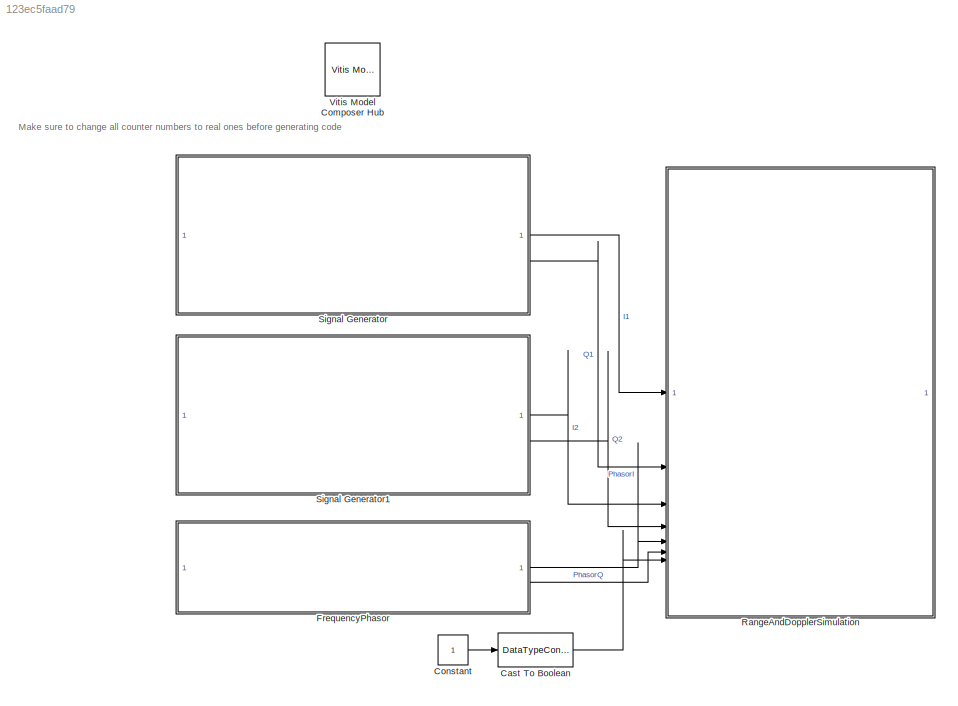
MODEL slx_123ec5faad79
KIND model
CONFIG AbsTol = auto
CONFIG EnableMultiTasking = off
CONFIG FixedStep = auto
CONFIG MaxStep = auto
CONFIG MinStep = auto
CONFIG RelTol = 1e-3
CONFIG SampleTimeConstraint = Unconstrained
CONFIG SolverName = VariableStepAuto
CONFIG StartTime = 0.0
CONFIG StopTime = 0.001
BLOCK [DataTypeConversion] Cast To Boolean
  OutDataTypeStr = boolean
  RndMeth = Floor
  SaturateOnIntegerOverflow = off
BLOCK [Constant] Constant
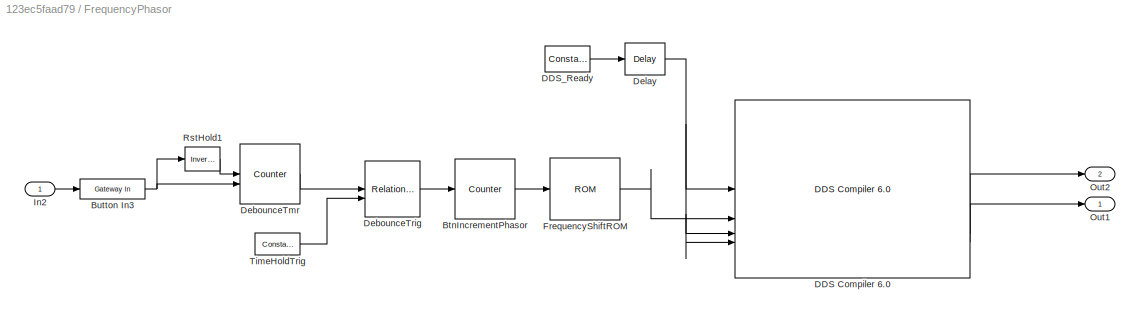
BLOCK [SubSystem] FrequencyPhasor
  SystemSampleTime = 1/200e6
  TreatAsAtomicUnit = on
BLOCK [Reference] FrequencyPhasor/BtnIncrementPhasor  REF=hdlBasic/Counter
  SourceBlock = hdlBasic/Counter
  SourceType = Counter Block
BLOCK [Reference] FrequencyPhasor/Button In3  REF=hdlBasic/Gateway In
  SourceBlock = hdlBasic/Gateway In
  SourceType = Gateway In Block
BLOCK [Reference] FrequencyPhasor/DDS Compiler 6.0  REF=hdlDSPIP/DDS Compiler 6.0 
  SourceBlock = hdlDSPIP/DDS Compiler 6.0
  SourceType = DDS Compiler 6.0 Block
BLOCK [Reference] FrequencyPhasor/DDS_Ready  REF=hdlBasic/Constant
  SourceBlock = hdlBasic/Constant
  SourceType = Constant Block Block
BLOCK [Reference] FrequencyPhasor/DebounceTmr  REF=hdlBasic/Counter
  SourceBlock = hdlBasic/Counter
  SourceType = Counter Block
BLOCK [Reference] FrequencyPhasor/DebounceTrig  REF=hdlBasic/Relational
  SourceBlock = hdlBasic/Relational
  SourceType = Arithmetic Relational Operator Block
BLOCK [Reference] FrequencyPhasor/Delay  REF=hdlBasic/Delay
  SourceBlock = hdlBasic/Delay
  SourceType = Delay Block
BLOCK [Reference] FrequencyPhasor/FrequencyShiftROM  REF=hdlBasic/ROM
  SourceBlock = hdlBasic/ROM
  SourceType = Single Port Read-Only Memory Block
BLOCK [Inport] FrequencyPhasor/In2
BLOCK [Outport] FrequencyPhasor/Out1
BLOCK [Outport] FrequencyPhasor/Out2
  Port = 2
BLOCK [Reference] FrequencyPhasor/RstHold1  REF=hdlBasic/Inverter
  SourceBlock = hdlBasic/Inverter
  SourceType = Inverter Block
BLOCK [Reference] FrequencyPhasor/TimeHoldTrig  REF=hdlBasic/Constant
  SourceBlock = hdlBasic/Constant
  SourceType = Constant Block Block
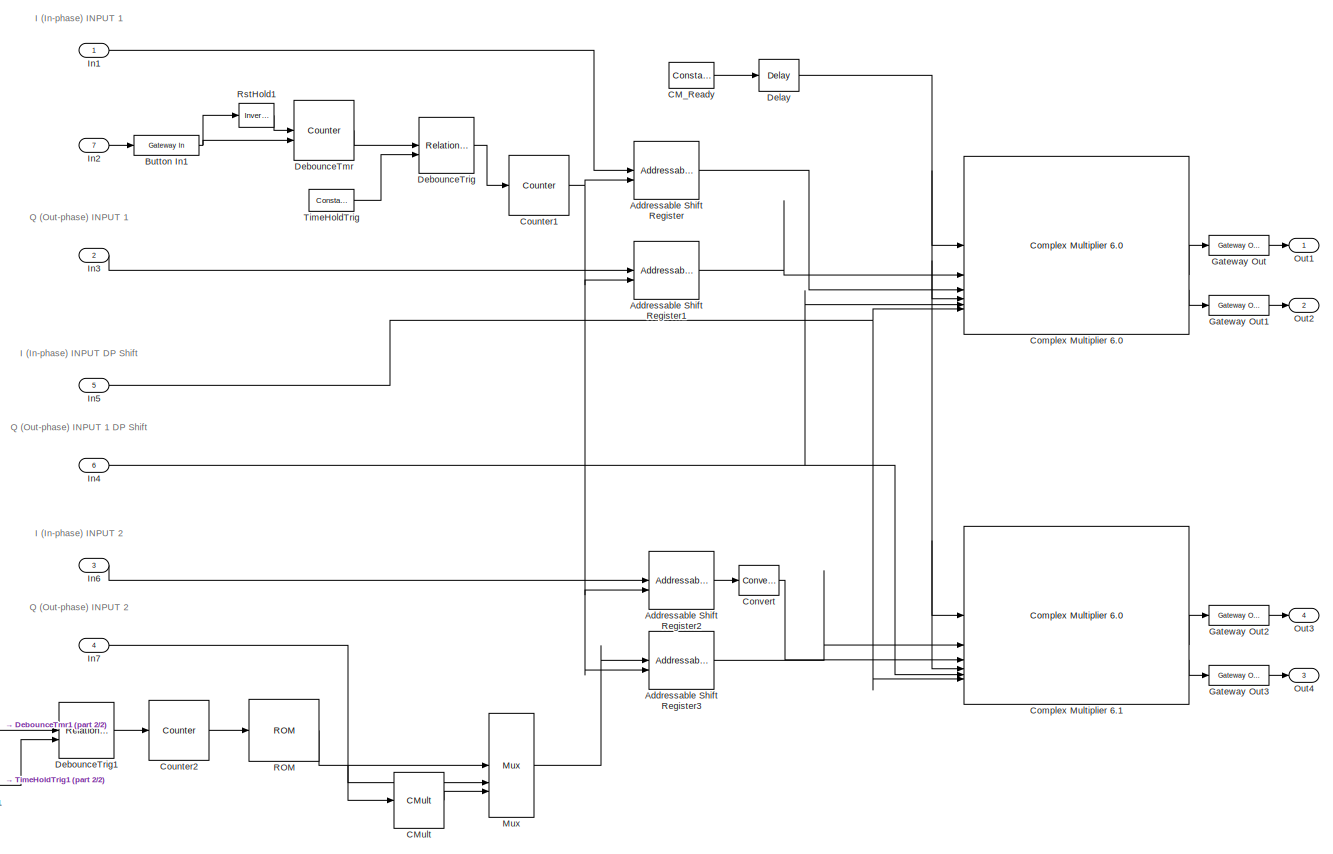
[diagram: RangeAndDopplerSimulation - part 1/2, most of the canvas]
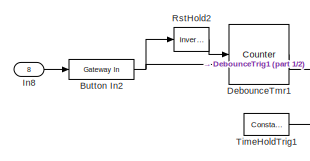
[diagram: RangeAndDopplerSimulation - part 2/2, bottom left region]
BLOCK [SubSystem] RangeAndDopplerSimulation
  SystemSampleTime = 1/200e6
  TreatAsAtomicUnit = on
BLOCK [Reference] RangeAndDopplerSimulation/Addressable Shift Register  REF=hdlBasic/Addressable Shift Register
  SourceBlock = hdlBasic/Addressable Shift Register
  SourceType = Addressable Shift Register Block
BLOCK [Reference] RangeAndDopplerSimulation/Addressable Shift Register1  REF=hdlBasic/Addressable Shift Register
  SourceBlock = hdlBasic/Addressable Shift Register
  SourceType = Addressable Shift Register Block
BLOCK [Reference] RangeAndDopplerSimulation/Addressable Shift Register2  REF=hdlBasic/Addressable Shift Register
  SourceBlock = hdlBasic/Addressable Shift Register
  SourceType = Addressable Shift Register Block
BLOCK [Reference] RangeAndDopplerSimulation/Addressable Shift Register3  REF=hdlBasic/Addressable Shift Register
  SourceBlock = hdlBasic/Addressable Shift Register
  SourceType = Addressable Shift Register Block
BLOCK [Reference] RangeAndDopplerSimulation/Button In1  REF=hdlBasic/Gateway In
  SourceBlock = hdlBasic/Gateway In
  SourceType = Gateway In Block
BLOCK [Reference] RangeAndDopplerSimulation/Button In2  REF=hdlBasic/Gateway In
  SourceBlock = hdlBasic/Gateway In
  SourceType = Gateway In Block
BLOCK [Reference] RangeAndDopplerSimulation/CM_Ready  REF=hdlBasic/Constant
  SourceBlock = hdlBasic/Constant
  SourceType = Constant Block Block
BLOCK [Reference] RangeAndDopplerSimulation/CMult  REF=hdlBasic/CMult
  SourceBlock = hdlBasic/CMult
  SourceType = Constant Multiplier Block
BLOCK [Reference] RangeAndDopplerSimulation/Complex Multiplier 6.0  REF=hdlDSPIP/Complex Multiplier 6.0 
  SourceBlock = hdlDSPIP/Complex Multiplier 6.0
  SourceType = Complex Multiplier 6.0  Block
BLOCK [Reference] RangeAndDopplerSimulation/Complex Multiplier 6.1  REF=hdlDSPIP/Complex Multiplier 6.0 
  SourceBlock = hdlDSPIP/Complex Multiplier 6.0
  SourceType = Complex Multiplier 6.0  Block
BLOCK [Reference] RangeAndDopplerSimulation/Convert  REF=hdlBasic/Convert
  SourceBlock = hdlBasic/Convert
  SourceType = Type Converter Block
BLOCK [Reference] RangeAndDopplerSimulation/Counter1  REF=hdlBasic/Counter
  SourceBlock = hdlBasic/Counter
  SourceType = Counter Block
BLOCK [Reference] RangeAndDopplerSimulation/Counter2  REF=hdlBasic/Counter
  SourceBlock = hdlBasic/Counter
  SourceType = Counter Block
BLOCK [Reference] RangeAndDopplerSimulation/DebounceTmr  REF=hdlBasic/Counter
  SourceBlock = hdlBasic/Counter
  SourceType = Counter Block
BLOCK [Reference] RangeAndDopplerSimulation/DebounceTmr1  REF=hdlBasic/Counter
  SourceBlock = hdlBasic/Counter
  SourceType = Counter Block
BLOCK [Reference] RangeAndDopplerSimulation/DebounceTrig  REF=hdlBasic/Relational
  SourceBlock = hdlBasic/Relational
  SourceType = Arithmetic Relational Operator Block
BLOCK [Reference] RangeAndDopplerSimulation/DebounceTrig1  REF=hdlBasic/Relational
  SourceBlock = hdlBasic/Relational
  SourceType = Arithmetic Relational Operator Block
BLOCK [Reference] RangeAndDopplerSimulation/Delay  REF=hdlBasic/Delay
  SourceBlock = hdlBasic/Delay
  SourceType = Delay Block
BLOCK [Reference] RangeAndDopplerSimulation/Gateway Out  REF=hdlBasic/Gateway Out
  SourceBlock = hdlBasic/Gateway Out
  SourceType = Gateway Out Block
BLOCK [Reference] RangeAndDopplerSimulation/Gateway Out1  REF=hdlBasic/Gateway Out
  SourceBlock = hdlBasic/Gateway Out
  SourceType = Gateway Out Block
BLOCK [Reference] RangeAndDopplerSimulation/Gateway Out2  REF=hdlBasic/Gateway Out
  SourceBlock = hdlBasic/Gateway Out
  SourceType = Gateway Out Block
BLOCK [Reference] RangeAndDopplerSimulation/Gateway Out3  REF=hdlBasic/Gateway Out
  SourceBlock = hdlBasic/Gateway Out
  SourceType = Gateway Out Block
BLOCK [Inport] RangeAndDopplerSimulation/In1
BLOCK [Inport] RangeAndDopplerSimulation/In2
  Port = 7
BLOCK [Inport] RangeAndDopplerSimulation/In3
  Port = 2
BLOCK [Inport] RangeAndDopplerSimulation/In4
  Port = 6
BLOCK [Inport] RangeAndDopplerSimulation/In5
  Port = 5
BLOCK [Inport] RangeAndDopplerSimulation/In6
  Port = 3
BLOCK [Inport] RangeAndDopplerSimulation/In7
  Port = 4
BLOCK [Inport] RangeAndDopplerSimulation/In8
  Port = 8
BLOCK [Reference] RangeAndDopplerSimulation/Mux  REF=hdlBasic/Mux
  SourceBlock = hdlBasic/Mux
  SourceType = Bus Multiplexer Block
BLOCK [Outport] RangeAndDopplerSimulation/Out1
BLOCK [Outport] RangeAndDopplerSimulation/Out2
  Port = 2
BLOCK [Outport] RangeAndDopplerSimulation/Out3
  Port = 4
BLOCK [Outport] RangeAndDopplerSimulation/Out4
  Port = 3
BLOCK [Reference] RangeAndDopplerSimulation/ROM  REF=hdlBasic/ROM
  SourceBlock = hdlBasic/ROM
  SourceType = Single Port Read-Only Memory Block
BLOCK [Reference] RangeAndDopplerSimulation/RstHold1  REF=hdlBasic/Inverter
  SourceBlock = hdlBasic/Inverter
  SourceType = Inverter Block
BLOCK [Reference] RangeAndDopplerSimulation/RstHold2  REF=hdlBasic/Inverter
  SourceBlock = hdlBasic/Inverter
  SourceType = Inverter Block
BLOCK [Reference] RangeAndDopplerSimulation/TimeHoldTrig  REF=hdlBasic/Constant
  SourceBlock = hdlBasic/Constant
  SourceType = Constant Block Block
BLOCK [Reference] RangeAndDopplerSimulation/TimeHoldTrig1  REF=hdlBasic/Constant
  SourceBlock = hdlBasic/Constant
  SourceType = Constant Block Block
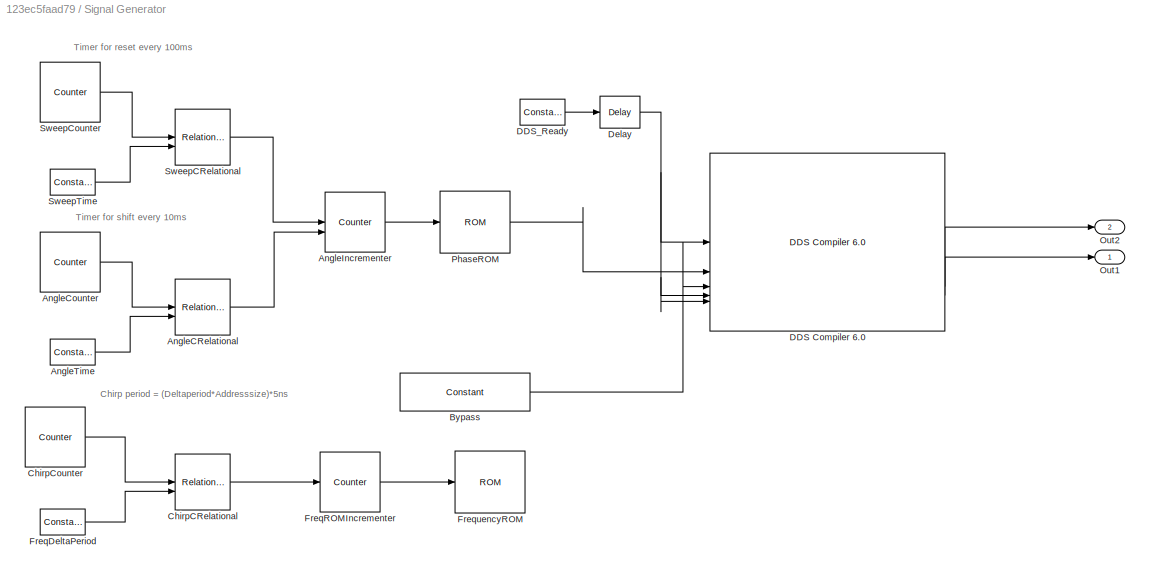
BLOCK [SubSystem] Signal Generator
  SystemSampleTime = 1/200e6
  TreatAsAtomicUnit = on
BLOCK [Reference] Signal Generator/AngleCRelational  REF=hdlBasic/Relational
  SourceBlock = hdlBasic/Relational
  SourceType = Arithmetic Relational Operator Block
BLOCK [Reference] Signal Generator/AngleCounter  REF=hdlBasic/Counter
  SourceBlock = hdlBasic/Counter
  SourceType = Counter Block
BLOCK [Reference] Signal Generator/AngleIncrementer  REF=hdlBasic/Counter
  SourceBlock = hdlBasic/Counter
  SourceType = Counter Block
BLOCK [Reference] Signal Generator/AngleTime  REF=hdlBasic/Constant
  SourceBlock = hdlBasic/Constant
  SourceType = Constant Block Block
BLOCK [Reference] Signal Generator/Bypass  REF=hdlBasic/Constant
  SourceBlock = hdlBasic/Constant
  SourceType = Constant Block Block
BLOCK [Reference] Signal Generator/ChirpCRelational  REF=hdlBasic/Relational
  SourceBlock = hdlBasic/Relational
  SourceType = Arithmetic Relational Operator Block
BLOCK [Reference] Signal Generator/ChirpCounter  REF=hdlBasic/Counter
  SourceBlock = hdlBasic/Counter
  SourceType = Counter Block
BLOCK [Reference] Signal Generator/DDS Compiler 6.0  REF=hdlDSPIP/DDS Compiler 6.0 
  SourceBlock = hdlDSPIP/DDS Compiler 6.0
  SourceType = DDS Compiler 6.0 Block
BLOCK [Reference] Signal Generator/DDS_Ready  REF=hdlBasic/Constant
  SourceBlock = hdlBasic/Constant
  SourceType = Constant Block Block
BLOCK [Reference] Signal Generator/Delay  REF=hdlBasic/Delay
  SourceBlock = hdlBasic/Delay
  SourceType = Delay Block
BLOCK [Reference] Signal Generator/FreqDeltaPeriod  REF=hdlBasic/Constant
  SourceBlock = hdlBasic/Constant
  SourceType = Constant Block Block
BLOCK [Reference] Signal Generator/FreqROMIncrementer  REF=hdlBasic/Counter
  SourceBlock = hdlBasic/Counter
  SourceType = Counter Block
BLOCK [Reference] Signal Generator/FrequencyROM  REF=hdlBasic/ROM
  SourceBlock = hdlBasic/ROM
  SourceType = Single Port Read-Only Memory Block
BLOCK [Outport] Signal Generator/Out1
BLOCK [Outport] Signal Generator/Out2
  Port = 2
BLOCK [Reference] Signal Generator/PhaseROM  REF=hdlBasic/ROM
  SourceBlock = hdlBasic/ROM
  SourceType = Single Port Read-Only Memory Block
BLOCK [Reference] Signal Generator/SweepCRelational  REF=hdlBasic/Relational
  SourceBlock = hdlBasic/Relational
  SourceType = Arithmetic Relational Operator Block
BLOCK [Reference] Signal Generator/SweepCounter  REF=hdlBasic/Counter
  SourceBlock = hdlBasic/Counter
  SourceType = Counter Block
BLOCK [Reference] Signal Generator/SweepTime  REF=hdlBasic/Constant
  SourceBlock = hdlBasic/Constant
  SourceType = Constant Block Block
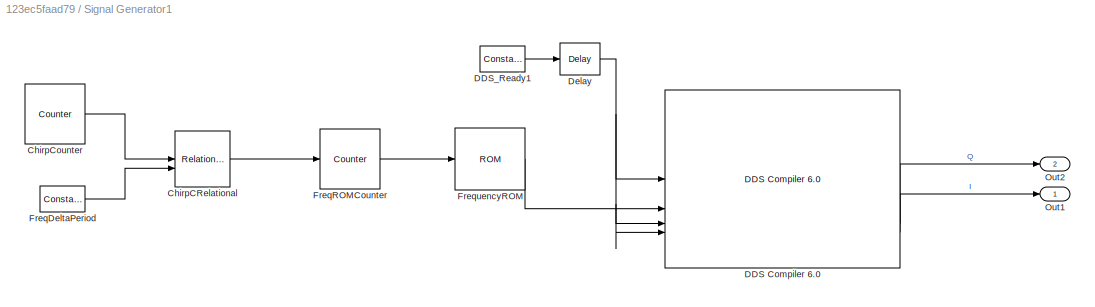
BLOCK [SubSystem] Signal Generator1
  SystemSampleTime = 1/200e6
  TreatAsAtomicUnit = on
BLOCK [Reference] Signal Generator1/ChirpCRelational  REF=hdlBasic/Relational
  SourceBlock = hdlBasic/Relational
  SourceType = Arithmetic Relational Operator Block
BLOCK [Reference] Signal Generator1/ChirpCounter  REF=hdlBasic/Counter
  SourceBlock = hdlBasic/Counter
  SourceType = Counter Block
BLOCK [Reference] Signal Generator1/DDS Compiler 6.0  REF=hdlDSPIP/DDS Compiler 6.0 
  SourceBlock = hdlDSPIP/DDS Compiler 6.0
  SourceType = DDS Compiler 6.0 Block
BLOCK [Reference] Signal Generator1/DDS_Ready1  REF=hdlBasic/Constant
  SourceBlock = hdlBasic/Constant
  SourceType = Constant Block Block
BLOCK [Reference] Signal Generator1/Delay  REF=hdlBasic/Delay
  SourceBlock = hdlBasic/Delay
  SourceType = Delay Block
BLOCK [Reference] Signal Generator1/FreqDeltaPeriod  REF=hdlBasic/Constant
  SourceBlock = hdlBasic/Constant
  SourceType = Constant Block Block
BLOCK [Reference] Signal Generator1/FreqROMCounter  REF=hdlBasic/Counter
  SourceBlock = hdlBasic/Counter
  SourceType = Counter Block
BLOCK [Reference] Signal Generator1/FrequencyROM  REF=hdlBasic/ROM
  SourceBlock = hdlBasic/ROM
  SourceType = Single Port Read-Only Memory Block
BLOCK [Outport] Signal Generator1/Out1
BLOCK [Outport] Signal Generator1/Out2
  Port = 2
BLOCK [Reference] Vitis Model Composer Hub  REF=vmcUtilities/Vitis Model Composer Hub
  SourceBlock = vmcUtilities/Vitis Model Composer Hub
  SourceType = VMC Hub
  Tag = genX
  UserDataPersistent = on
ANNOTATION (root): Make sure to change all counter numbers to real ones before generating code
ANNOTATION RangeAndDopplerSimulation: I (In-phase) INPUT 1
ANNOTATION RangeAndDopplerSimulation: I (In-phase) INPUT 2
ANNOTATION RangeAndDopplerSimulation: I (In-phase) INPUT DP Shift
ANNOTATION RangeAndDopplerSimulation: Q (Out-phase) INPUT 1
ANNOTATION RangeAndDopplerSimulation: Q (Out-phase) INPUT 1 DP Shift
ANNOTATION RangeAndDopplerSimulation: Q (Out-phase) INPUT 2
ANNOTATION Signal Generator: Chirp period = (Deltaperiod*Addresssize)*5ns
ANNOTATION Signal Generator: Timer for reset every 100ms
ANNOTATION Signal Generator: Timer for shift every 10ms
LINE Cast To Boolean:1 -> RangeAndDopplerSimulation:7
LINE Constant:1 -> Cast To Boolean:1
LINE FrequencyPhasor/BtnIncrementPhasor:1 -> FrequencyPhasor/FrequencyShiftROM:1
NET FrequencyPhasor/Button In3:1 -> FrequencyPhasor/DebounceTmr:2, FrequencyPhasor/RstHold1:1
LINE FrequencyPhasor/DDS Compiler 6.0:3 -> FrequencyPhasor/Out2:1
LINE FrequencyPhasor/DDS Compiler 6.0:4 -> FrequencyPhasor/Out1:1
LINE FrequencyPhasor/DDS_Ready:1 -> FrequencyPhasor/Delay:1
LINE FrequencyPhasor/DebounceTmr:1 -> FrequencyPhasor/DebounceTrig:1
LINE FrequencyPhasor/DebounceTrig:1 -> FrequencyPhasor/BtnIncrementPhasor:1
NET FrequencyPhasor/Delay:1 -> FrequencyPhasor/DDS Compiler 6.0:1, FrequencyPhasor/DDS Compiler 6.0:3, FrequencyPhasor/DDS Compiler 6.0:4
LINE FrequencyPhasor/FrequencyShiftROM:1 -> FrequencyPhasor/DDS Compiler 6.0:2
LINE FrequencyPhasor/In2:1 -> FrequencyPhasor/Button In3:1
LINE FrequencyPhasor/RstHold1:1 -> FrequencyPhasor/DebounceTmr:1
LINE FrequencyPhasor/TimeHoldTrig:1 -> FrequencyPhasor/DebounceTrig:2
LINE FrequencyPhasor:1 -> RangeAndDopplerSimulation:5
LINE FrequencyPhasor:2 -> RangeAndDopplerSimulation:6
LINE RangeAndDopplerSimulation/Addressable Shift Register1:1 -> RangeAndDopplerSimulation/Complex Multiplier 6.0:2
LINE RangeAndDopplerSimulation/Addressable Shift Register2:1 -> RangeAndDopplerSimulation/Convert:1
LINE RangeAndDopplerSimulation/Addressable Shift Register3:1 -> RangeAndDopplerSimulation/Complex Multiplier 6.1:2
LINE RangeAndDopplerSimulation/Addressable Shift Register:1 -> RangeAndDopplerSimulation/Complex Multiplier 6.0:3
NET RangeAndDopplerSimulation/Button In1:1 -> RangeAndDopplerSimulation/DebounceTmr:2, RangeAndDopplerSimulation/RstHold1:1
NET RangeAndDopplerSimulation/Button In2:1 -> RangeAndDopplerSimulation/DebounceTmr1:2, RangeAndDopplerSimulation/RstHold2:1
LINE RangeAndDopplerSimulation/CM_Ready:1 -> RangeAndDopplerSimulation/Delay:1
LINE RangeAndDopplerSimulation/CMult:1 -> RangeAndDopplerSimulation/Mux:3
LINE RangeAndDopplerSimulation/Complex Multiplier 6.0:2 -> RangeAndDopplerSimulation/Gateway Out:1
LINE RangeAndDopplerSimulation/Complex Multiplier 6.0:3 -> RangeAndDopplerSimulation/Gateway Out1:1
LINE RangeAndDopplerSimulation/Complex Multiplier 6.1:2 -> RangeAndDopplerSimulation/Gateway Out2:1
LINE RangeAndDopplerSimulation/Complex Multiplier 6.1:3 -> RangeAndDopplerSimulation/Gateway Out3:1
LINE RangeAndDopplerSimulation/Convert:1 -> RangeAndDopplerSimulation/Complex Multiplier 6.1:3
NET RangeAndDopplerSimulation/Counter1:1 -> RangeAndDopplerSimulation/Addressable Shift Register1:2, RangeAndDopplerSimulation/Addressable Shift Register2:2, RangeAndDopplerSimulation/Addressable Shift Register3:2, RangeAndDopplerSimulation/Addressable Shift Register:2
LINE RangeAndDopplerSimulation/Counter2:1 -> RangeAndDopplerSimulation/ROM:1
LINE RangeAndDopplerSimulation/DebounceTmr1:1 -> RangeAndDopplerSimulation/DebounceTrig1:1
LINE RangeAndDopplerSimulation/DebounceTmr:1 -> RangeAndDopplerSimulation/DebounceTrig:1
LINE RangeAndDopplerSimulation/DebounceTrig1:1 -> RangeAndDopplerSimulation/Counter2:1
LINE RangeAndDopplerSimulation/DebounceTrig:1 -> RangeAndDopplerSimulation/Counter1:1
NET RangeAndDopplerSimulation/Delay:1 -> RangeAndDopplerSimulation/Complex Multiplier 6.0:1, RangeAndDopplerSimulation/Complex Multiplier 6.0:4, RangeAndDopplerSimulation/Complex Multiplier 6.1:1, RangeAndDopplerSimulation/Complex Multiplier 6.1:4
LINE RangeAndDopplerSimulation/Gateway Out1:1 -> RangeAndDopplerSimulation/Out2:1
LINE RangeAndDopplerSimulation/Gateway Out2:1 -> RangeAndDopplerSimulation/Out3:1
LINE RangeAndDopplerSimulation/Gateway Out3:1 -> RangeAndDopplerSimulation/Out4:1
LINE RangeAndDopplerSimulation/Gateway Out:1 -> RangeAndDopplerSimulation/Out1:1
LINE RangeAndDopplerSimulation/In1:1 -> RangeAndDopplerSimulation/Addressable Shift Register:1
LINE RangeAndDopplerSimulation/In2:1 -> RangeAndDopplerSimulation/Button In1:1
LINE RangeAndDopplerSimulation/In3:1 -> RangeAndDopplerSimulation/Addressable Shift Register1:1
NET RangeAndDopplerSimulation/In4:1 -> RangeAndDopplerSimulation/Complex Multiplier 6.0:5, RangeAndDopplerSimulation/Complex Multiplier 6.1:5
NET RangeAndDopplerSimulation/In5:1 -> RangeAndDopplerSimulation/Complex Multiplier 6.0:6, RangeAndDopplerSimulation/Complex Multiplier 6.1:6
LINE RangeAndDopplerSimulation/In6:1 -> RangeAndDopplerSimulation/Addressable Shift Register2:1
NET RangeAndDopplerSimulation/In7:1 -> RangeAndDopplerSimulation/CMult:1, RangeAndDopplerSimulation/Mux:2
LINE RangeAndDopplerSimulation/In8:1 -> RangeAndDopplerSimulation/Button In2:1
LINE RangeAndDopplerSimulation/Mux:1 -> RangeAndDopplerSimulation/Addressable Shift Register3:1
LINE RangeAndDopplerSimulation/ROM:1 -> RangeAndDopplerSimulation/Mux:1
LINE RangeAndDopplerSimulation/RstHold1:1 -> RangeAndDopplerSimulation/DebounceTmr:1
LINE RangeAndDopplerSimulation/RstHold2:1 -> RangeAndDopplerSimulation/DebounceTmr1:1
LINE RangeAndDopplerSimulation/TimeHoldTrig1:1 -> RangeAndDopplerSimulation/DebounceTrig1:2
LINE RangeAndDopplerSimulation/TimeHoldTrig:1 -> RangeAndDopplerSimulation/DebounceTrig:2
LINE Signal Generator/AngleCRelational:1 -> Signal Generator/AngleIncrementer:2
LINE Signal Generator/AngleCounter:1 -> Signal Generator/AngleCRelational:1
LINE Signal Generator/AngleIncrementer:1 -> Signal Generator/PhaseROM:1
LINE Signal Generator/AngleTime:1 -> Signal Generator/AngleCRelational:2
LINE Signal Generator/Bypass:1 -> Signal Generator/DDS Compiler 6.0:3
LINE Signal Generator/ChirpCRelational:1 -> Signal Generator/FreqROMIncrementer:1
LINE Signal Generator/ChirpCounter:1 -> Signal Generator/ChirpCRelational:1
LINE Signal Generator/DDS Compiler 6.0:3 -> Signal Generator/Out2:1
LINE Signal Generator/DDS Compiler 6.0:4 -> Signal Generator/Out1:1
LINE Signal Generator/DDS_Ready:1 -> Signal Generator/Delay:1
NET Signal Generator/Delay:1 -> Signal Generator/DDS Compiler 6.0:1, Signal Generator/DDS Compiler 6.0:4, Signal Generator/DDS Compiler 6.0:5
LINE Signal Generator/FreqDeltaPeriod:1 -> Signal Generator/ChirpCRelational:2
LINE Signal Generator/FreqROMIncrementer:1 -> Signal Generator/FrequencyROM:1
LINE Signal Generator/PhaseROM:1 -> Signal Generator/DDS Compiler 6.0:2
LINE Signal Generator/SweepCRelational:1 -> Signal Generator/AngleIncrementer:1
LINE Signal Generator/SweepCounter:1 -> Signal Generator/SweepCRelational:1
LINE Signal Generator/SweepTime:1 -> Signal Generator/SweepCRelational:2
LINE Signal Generator1/ChirpCRelational:1 -> Signal Generator1/FreqROMCounter:1
LINE Signal Generator1/ChirpCounter:1 -> Signal Generator1/ChirpCRelational:1
LINE Signal Generator1/DDS Compiler 6.0:3 -> Signal Generator1/Out2:1
LINE Signal Generator1/DDS Compiler 6.0:4 -> Signal Generator1/Out1:1
LINE Signal Generator1/DDS_Ready1:1 -> Signal Generator1/Delay:1
NET Signal Generator1/Delay:1 -> Signal Generator1/DDS Compiler 6.0:1, Signal Generator1/DDS Compiler 6.0:3, Signal Generator1/DDS Compiler 6.0:4
LINE Signal Generator1/FreqDeltaPeriod:1 -> Signal Generator1/ChirpCRelational:2
LINE Signal Generator1/FreqROMCounter:1 -> Signal Generator1/FrequencyROM:1
LINE Signal Generator1/FrequencyROM:1 -> Signal Generator1/DDS Compiler 6.0:2
LINE Signal Generator1:1 -> RangeAndDopplerSimulation:3
LINE Signal Generator1:2 -> RangeAndDopplerSimulation:4
LINE Signal Generator:1 -> RangeAndDopplerSimulation:1
LINE Signal Generator:2 -> RangeAndDopplerSimulation:2
note: NET lines group one-source signal fan-out (src -> all destinations, sorted); 1:1 wires keep LINE
